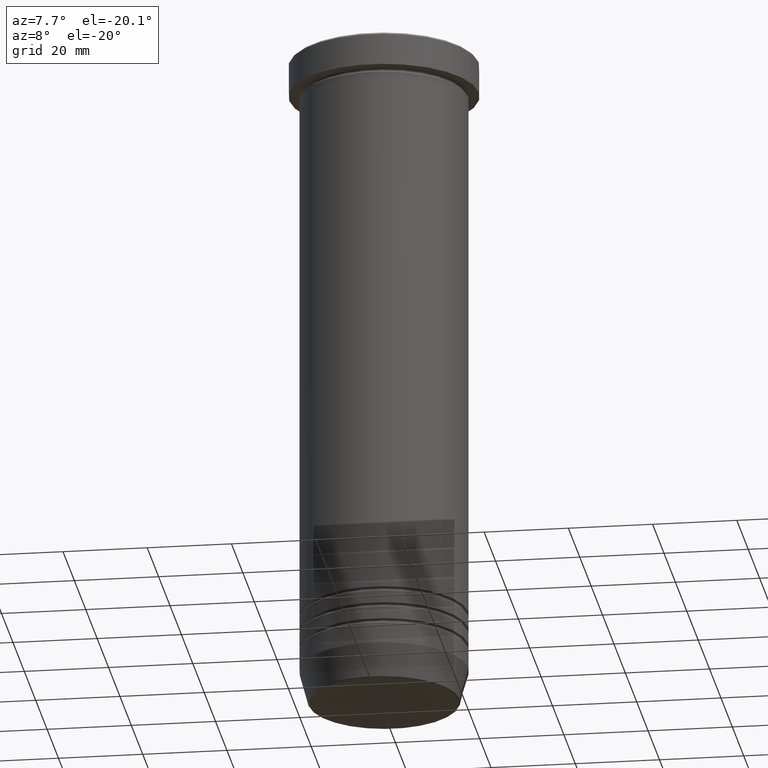
[diagram: clean part render]
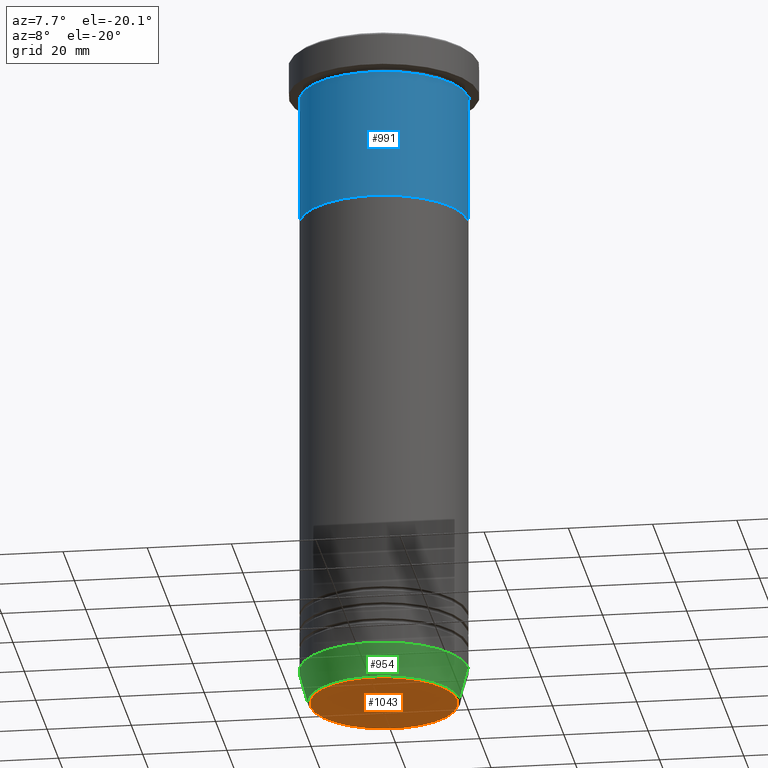
[diagram: same view with three faces highlighted in distinct colors, each labeled with its STEP entity id]
A machine part, auxiliary view with three faces highlighted in distinct colors.
Their STEP definitions:

[orange] entity #1043 — the highlighted planar face has unit normal (0, -0, 1).
#24 = DIRECTION ( 'NONE',  ( 1.000000000000000000, 0.000000000000000000, 0.000000000000000000 ) ) ;
#117 = DIRECTION ( 'NONE',  ( 0.000000000000000000, 0.000000000000000000, -1.000000000000000000 ) ) ;
#177 = CARTESIAN_POINT ( 'NONE',  ( 17.47274296656153325, 0.000000000000000000, -160.0000000000000284 ) ) ;
#184 = DIRECTION ( 'NONE',  ( 0.000000000000000000, -0.000000000000000000, 1.000000000000000000 ) ) ;
#214 = CARTESIAN_POINT ( 'NONE',  ( -17.47274296656153325, 2.169366823916867714E-15, -160.0000000000000284 ) ) ;
#268 = CARTESIAN_POINT ( 'NONE',  ( 0.000000000000000000, 0.000000000000000000, -160.0000000000000284 ) ) ;
#478 = CIRCLE ( 'NONE', #665, 17.47274296656153325 ) ;
#525 = EDGE_LOOP ( 'NONE', ( #713, #528 ) ) ;
#528 = ORIENTED_EDGE ( 'NONE', *, *, #650, .T. ) ;
#592 = PLANE ( 'NONE',  #640 ) ;
#640 = AXIS2_PLACEMENT_3D ( 'NONE', #915, #184, #848 ) ;
#650 = EDGE_CURVE ( 'NONE', #694, #765, #478, .T. ) ;
#665 = AXIS2_PLACEMENT_3D ( 'NONE', #268, #851, #784 ) ;
#682 = FACE_OUTER_BOUND ( 'NONE', #525, .T. ) ;
#694 = VERTEX_POINT ( 'NONE', #214 ) ;
#713 = ORIENTED_EDGE ( 'NONE', *, *, #820, .T. ) ;
#765 = VERTEX_POINT ( 'NONE', #177 ) ;
#784 = DIRECTION ( 'NONE',  ( 1.000000000000000000, 0.000000000000000000, 0.000000000000000000 ) ) ;
#820 = EDGE_CURVE ( 'NONE', #765, #694, #978, .T. ) ;
#848 = DIRECTION ( 'NONE',  ( 1.000000000000000000, 0.000000000000000000, 0.000000000000000000 ) ) ;
#851 = DIRECTION ( 'NONE',  ( 0.000000000000000000, 0.000000000000000000, -1.000000000000000000 ) ) ;
#858 = CARTESIAN_POINT ( 'NONE',  ( 0.000000000000000000, 0.000000000000000000, -160.0000000000000284 ) ) ;
#915 = CARTESIAN_POINT ( 'NONE',  ( 0.000000000000000000, 1.347111479062088523E-14, -160.0000000000000284 ) ) ;
#920 = AXIS2_PLACEMENT_3D ( 'NONE', #858, #117, #24 ) ;
#978 = CIRCLE ( 'NONE', #920, 17.47274296656153325 ) ;
#1043 = ADVANCED_FACE ( 'NONE', ( #682 ), #592, .F. ) ;

[blue] entity #991 — the highlighted cylindrical surface (partial cylindrical patch) has radius 20 mm, axis along (-0, -0, 1).
#13 = AXIS2_PLACEMENT_3D ( 'NONE', #676, #1000, #702 ) ;
#30 = ORIENTED_EDGE ( 'NONE', *, *, #229, .F. ) ;
#43 = CARTESIAN_POINT ( 'NONE',  ( 0.000000000000000000, 0.000000000000000000, 0.000000000000000000 ) ) ;
#50 = LINE ( 'NONE', #367, #289 ) ;
#57 = DIRECTION ( 'NONE',  ( 1.000000000000000000, 0.000000000000000000, 0.000000000000000000 ) ) ;
#73 = EDGE_CURVE ( 'NONE', #288, #916, #532, .T. ) ;
#116 = ORIENTED_EDGE ( 'NONE', *, *, #73, .F. ) ;
#135 = DIRECTION ( 'NONE',  ( 1.000000000000000000, 0.000000000000000000, 0.000000000000000000 ) ) ;
#219 = VERTEX_POINT ( 'NONE', #316 ) ;
#229 = EDGE_CURVE ( 'NONE', #388, #288, #725, .T. ) ;
#259 = DIRECTION ( 'NONE',  ( -0.000000000000000000, -0.000000000000000000, 1.000000000000000000 ) ) ;
#288 = VERTEX_POINT ( 'NONE', #1013 ) ;
#289 = VECTOR ( 'NONE', #259, 1000.000000000000000 ) ;
#316 = CARTESIAN_POINT ( 'NONE',  ( 20.00000000000000000, 0.000000000000000000, -40.00000000000000000 ) ) ;
#352 = CIRCLE ( 'NONE', #13, 20.00000000000000000 ) ;
#363 = EDGE_LOOP ( 'NONE', ( #30, #546, #517, #116 ) ) ;
#367 = CARTESIAN_POINT ( 'NONE',  ( 20.00000000000000000, 0.000000000000000000, 0.000000000000000000 ) ) ;
#388 = VERTEX_POINT ( 'NONE', #844 ) ;
#463 = CYLINDRICAL_SURFACE ( 'NONE', #964, 20.00000000000000000 ) ;
#517 = ORIENTED_EDGE ( 'NONE', *, *, #1028, .T. ) ;
#532 = CIRCLE ( 'NONE', #578, 20.00000000000000000 ) ;
#546 = ORIENTED_EDGE ( 'NONE', *, *, #827, .T. ) ;
#548 = CARTESIAN_POINT ( 'NONE',  ( 20.00000000000000000, 0.000000000000000000, -9.000000000000001776 ) ) ;
#578 = AXIS2_PLACEMENT_3D ( 'NONE', #799, #878, #57 ) ;
#627 = FACE_OUTER_BOUND ( 'NONE', #363, .T. ) ;
#654 = CARTESIAN_POINT ( 'NONE',  ( -20.00000000000000000, 2.449293598294706513E-15, 0.000000000000000000 ) ) ;
#676 = CARTESIAN_POINT ( 'NONE',  ( 0.000000000000000000, 0.000000000000000000, -40.00000000000000000 ) ) ;
#702 = DIRECTION ( 'NONE',  ( 1.000000000000000000, 0.000000000000000000, 0.000000000000000000 ) ) ;
#725 = LINE ( 'NONE', #654, #828 ) ;
#799 = CARTESIAN_POINT ( 'NONE',  ( 0.000000000000000000, 0.000000000000000000, -9.000000000000001776 ) ) ;
#827 = EDGE_CURVE ( 'NONE', #388, #219, #352, .T. ) ;
#828 = VECTOR ( 'NONE', #902, 1000.000000000000000 ) ;
#844 = CARTESIAN_POINT ( 'NONE',  ( -20.00000000000000000, 2.449293598294706513E-15, -40.00000000000000000 ) ) ;
#878 = DIRECTION ( 'NONE',  ( -0.000000000000000000, -0.000000000000000000, 1.000000000000000000 ) ) ;
#902 = DIRECTION ( 'NONE',  ( -0.000000000000000000, -0.000000000000000000, 1.000000000000000000 ) ) ;
#916 = VERTEX_POINT ( 'NONE', #548 ) ;
#964 = AXIS2_PLACEMENT_3D ( 'NONE', #43, #1025, #135 ) ;
#991 = ADVANCED_FACE ( 'NONE', ( #627 ), #463, .T. ) ;
#1000 = DIRECTION ( 'NONE',  ( -0.000000000000000000, -0.000000000000000000, 1.000000000000000000 ) ) ;
#1013 = CARTESIAN_POINT ( 'NONE',  ( -20.00000000000000000, 2.449293598294706513E-15, -9.000000000000001776 ) ) ;
#1025 = DIRECTION ( 'NONE',  ( -0.000000000000000000, -0.000000000000000000, 1.000000000000000000 ) ) ;
#1028 = EDGE_CURVE ( 'NONE', #219, #916, #50, .T. ) ;

[green] entity #954 — the highlighted conical surface has half-angle 15 deg.
#44 = EDGE_CURVE ( 'NONE', #686, #260, #767, .T. ) ;
#59 = DIRECTION ( 'NONE',  ( -0.000000000000000000, -0.000000000000000000, 1.000000000000000000 ) ) ;
#67 = CARTESIAN_POINT ( 'NONE',  ( 0.000000000000000000, 0.000000000000000000, -159.6294095225512706 ) ) ;
#81 = DIRECTION ( 'NONE',  ( 0.2588190451025208505, 0.000000000000000000, 0.9659258262890683122 ) ) ;
#125 = EDGE_CURVE ( 'NONE', #686, #545, #398, .T. ) ;
#147 = VECTOR ( 'NONE', #81, 1000.000000000000114 ) ;
#157 = EDGE_LOOP ( 'NONE', ( #226, #206, #1040, #1023 ) ) ;
#206 = ORIENTED_EDGE ( 'NONE', *, *, #44, .T. ) ;
#226 = ORIENTED_EDGE ( 'NONE', *, *, #125, .F. ) ;
#260 = VERTEX_POINT ( 'NONE', #946 ) ;
#300 = DIRECTION ( 'NONE',  ( 1.000000000000000000, 0.000000000000000000, 0.000000000000000000 ) ) ;
#313 = FACE_OUTER_BOUND ( 'NONE', #157, .T. ) ;
#336 = DIRECTION ( 'NONE',  ( -0.2588190451025208505, 3.169619151431766174E-17, 0.9659258262890683122 ) ) ;
#362 = CARTESIAN_POINT ( 'NONE',  ( -20.00000000000000000, 2.449293598294706513E-15, -152.0000000000000000 ) ) ;
#368 = DIRECTION ( 'NONE',  ( -0.000000000000000000, -0.000000000000000000, 1.000000000000000000 ) ) ;
#398 = LINE ( 'NONE', #668, #940 ) ;
#437 = CIRCLE ( 'NONE', #942, 20.00000000000000000 ) ;
#456 = DIRECTION ( 'NONE',  ( -1.000000000000000000, 0.000000000000000000, 0.000000000000000000 ) ) ;
#471 = LINE ( 'NONE', #486, #147 ) ;
#483 = CARTESIAN_POINT ( 'NONE',  ( 0.000000000000000000, 0.000000000000000000, -160.0000000000000284 ) ) ;
#486 = CARTESIAN_POINT ( 'NONE',  ( 17.85640646055101044, 0.000000000000000000, -160.0000000000000284 ) ) ;
#545 = VERTEX_POINT ( 'NONE', #362 ) ;
#554 = EDGE_CURVE ( 'NONE', #545, #870, #437, .T. ) ;
#559 = DIRECTION ( 'NONE',  ( -0.000000000000000000, -0.000000000000000000, 1.000000000000000000 ) ) ;
#598 = AXIS2_PLACEMENT_3D ( 'NONE', #483, #368, #945 ) ;
#656 = CONICAL_SURFACE ( 'NONE', #598, 17.85640646055101044, 0.2617993877991495189 ) ;
#668 = CARTESIAN_POINT ( 'NONE',  ( -17.85640646055101044, 2.186779101618791262E-15, -160.0000000000000284 ) ) ;
#686 = VERTEX_POINT ( 'NONE', #869 ) ;
#750 = AXIS2_PLACEMENT_3D ( 'NONE', #67, #559, #456 ) ;
#767 = CIRCLE ( 'NONE', #750, 17.95570587970606269 ) ;
#869 = CARTESIAN_POINT ( 'NONE',  ( -17.95570587970606269, 2.324116685748020188E-15, -159.6294095225512706 ) ) ;
#870 = VERTEX_POINT ( 'NONE', #970 ) ;
#891 = CARTESIAN_POINT ( 'NONE',  ( 0.000000000000000000, 0.000000000000000000, -152.0000000000000000 ) ) ;
#899 = EDGE_CURVE ( 'NONE', #260, #870, #471, .T. ) ;
#940 = VECTOR ( 'NONE', #336, 1000.000000000000114 ) ;
#942 = AXIS2_PLACEMENT_3D ( 'NONE', #891, #59, #300 ) ;
#945 = DIRECTION ( 'NONE',  ( 1.000000000000000000, 0.000000000000000000, 0.000000000000000000 ) ) ;
#946 = CARTESIAN_POINT ( 'NONE',  ( 17.95570587970606269, 0.000000000000000000, -159.6294095225512706 ) ) ;
#954 = ADVANCED_FACE ( 'NONE', ( #313 ), #656, .T. ) ;
#970 = CARTESIAN_POINT ( 'NONE',  ( 20.00000000000000000, 0.000000000000000000, -152.0000000000000000 ) ) ;
#1023 = ORIENTED_EDGE ( 'NONE', *, *, #554, .F. ) ;
#1040 = ORIENTED_EDGE ( 'NONE', *, *, #899, .T. ) ;